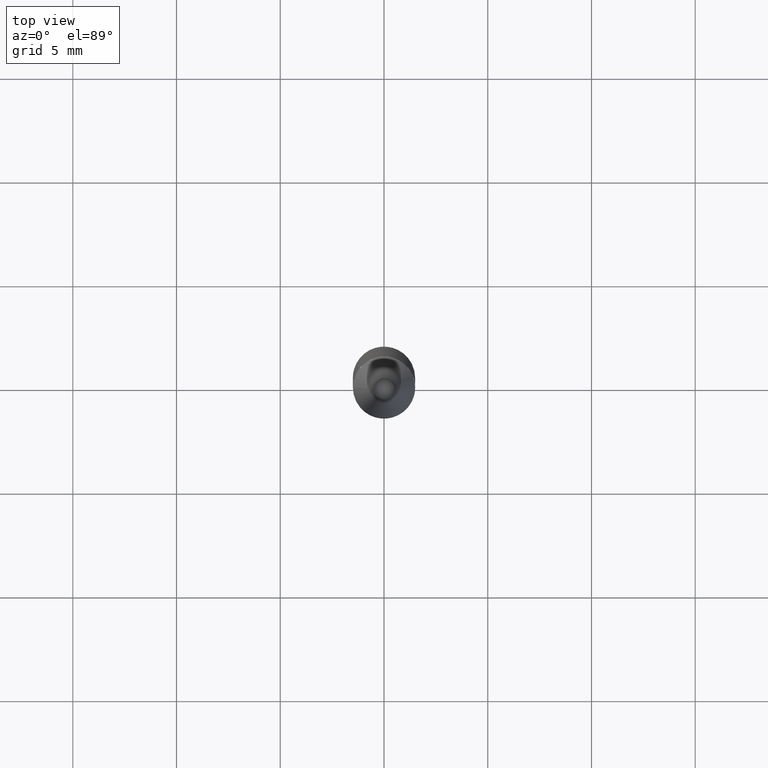
[diagram: clean part render]
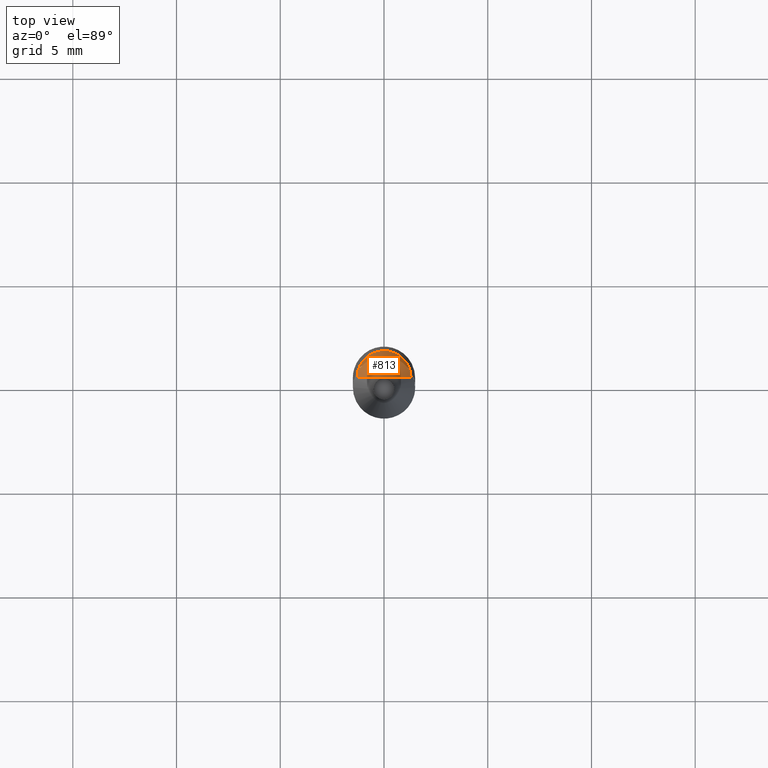
[diagram: same view with one face highlighted and labeled with its STEP entity id]
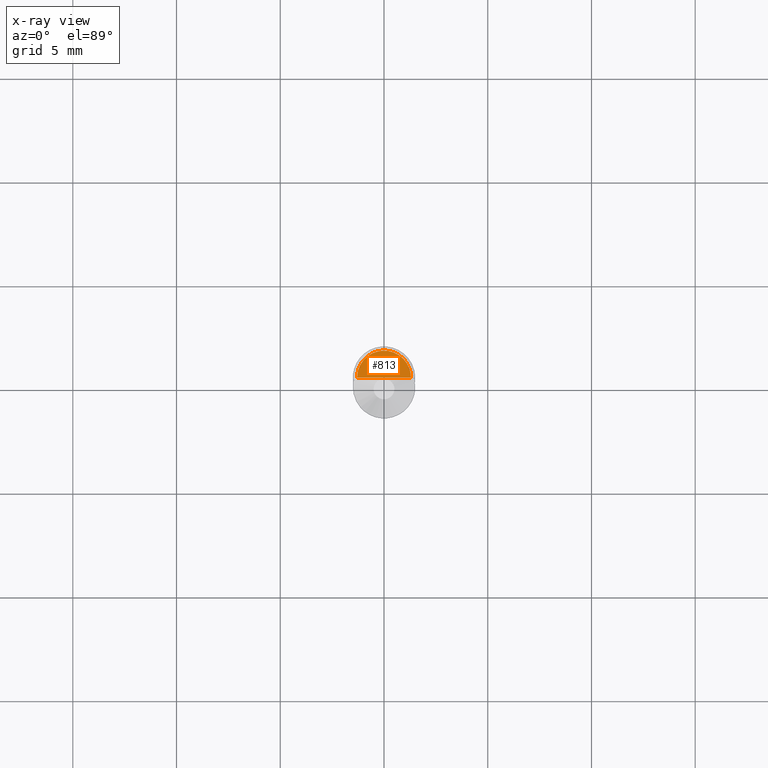
[diagram: x-ray of the same camera — body ghosted, the highlighted face saturated]
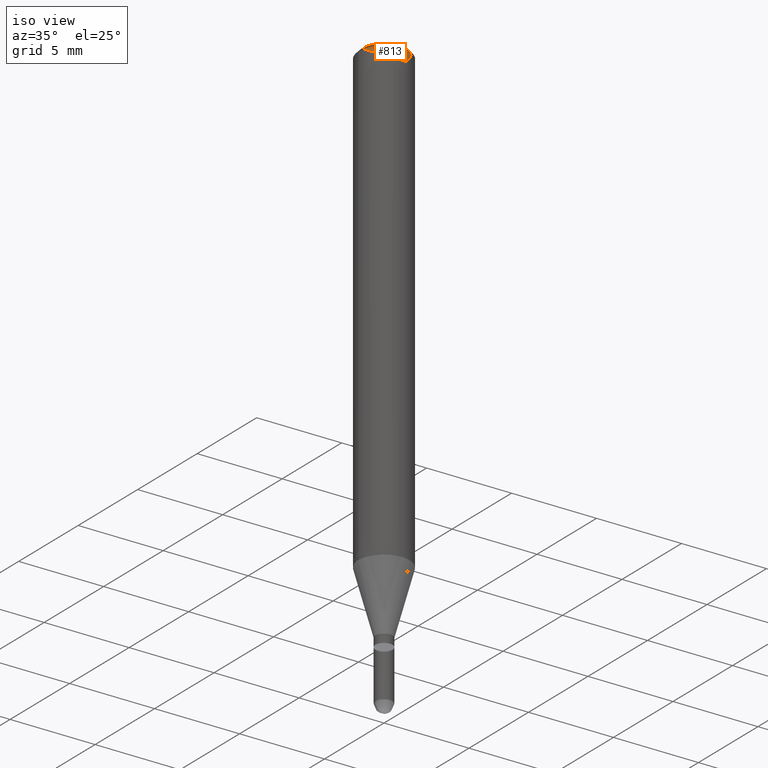
[diagram: same view with one face highlighted and labeled with its STEP entity id]
A machine part, top view. The second image highlights one B-rep face of the part: STEP entity #813.
The next image is the same camera in x-ray: the body ghosted, the highlighted face saturated — about 0% of this face is hidden behind the body in this view.
A second angle (iso view) of the same face is appended — the face is thin or edge-on in the first view.
In plain terms, the highlighted face is a freeform B-spline surface patch.
Its self-contained STEP definition (entity closure, byte-faithful):
#546=CARTESIAN_POINT('',(1.3,0.0,27.0));
#547=CARTESIAN_POINT('',(1.3,1.3,27.0));
#548=CARTESIAN_POINT('',(0.0,1.3,27.0));
#549=CARTESIAN_POINT('',(-1.3,1.3,27.0));
#550=CARTESIAN_POINT('',(-1.3,0.0,27.0));
#551=CARTESIAN_POINT('',(0.0,0.0,27.0));
#798=(
BOUNDED_SURFACE()
B_SPLINE_SURFACE(1,2,(
(#546,#547,#548,#549,#550),
(#551,#551,#551,#551,#551)
), .UNSPECIFIED.,.F.,.F.,.F.)
B_SPLINE_SURFACE_WITH_KNOTS((2,2),(3,2,3),(
0.0,1.0),(
0.0,0.5,1.0), .UNSPECIFIED.)
GEOMETRIC_REPRESENTATION_ITEM()
RATIONAL_B_SPLINE_SURFACE(((1.0,0.707106781187,1.0,0.707106781187,1.0),
(1.0,0.707106781187,1.0,0.707106781187,1.0)
))
REPRESENTATION_ITEM('')
SURFACE()
);
#799=(
BOUNDED_CURVE()
B_SPLINE_CURVE(2,(#550,#549,#548,#547,#546),.UNSPECIFIED.,.F.,.F.)
B_SPLINE_CURVE_WITH_KNOTS((3,2,3),
(0.0,0.5,1.0),.UNSPECIFIED.)
CURVE()
GEOMETRIC_REPRESENTATION_ITEM()
RATIONAL_B_SPLINE_CURVE((1.0,0.707106781187,1.0,0.707106781187,1.0))
REPRESENTATION_ITEM('')
);
#800=(
BOUNDED_CURVE()
B_SPLINE_CURVE(1,(#546,#551),.UNSPECIFIED.,.F.,.F.)
B_SPLINE_CURVE_WITH_KNOTS((2,2),
(0.0,1.0),.UNSPECIFIED.)
CURVE()
GEOMETRIC_REPRESENTATION_ITEM()
RATIONAL_B_SPLINE_CURVE((1.0,1.0))
REPRESENTATION_ITEM('')
);
#801=(
BOUNDED_CURVE()
B_SPLINE_CURVE(1,(#551,#550),.UNSPECIFIED.,.F.,.F.)
B_SPLINE_CURVE_WITH_KNOTS((2,2),
(0.0,1.0),.UNSPECIFIED.)
CURVE()
GEOMETRIC_REPRESENTATION_ITEM()
RATIONAL_B_SPLINE_CURVE((1.0,1.0))
REPRESENTATION_ITEM('')
);
#802=VERTEX_POINT('',#546);
#803=VERTEX_POINT('',#550);
#804=VERTEX_POINT('',#551);
#805=EDGE_CURVE('',#803,#802,#799,.T.);
#806=EDGE_CURVE('',#802,#804,#800,.T.);
#807=EDGE_CURVE('',#804,#803,#801,.T.);
#808=ORIENTED_EDGE('',*,*,#805,.T.);
#809=ORIENTED_EDGE('',*,*,#806,.T.);
#810=ORIENTED_EDGE('',*,*,#807,.T.);
#811=EDGE_LOOP('',(#808,#809,#810));
#812=FACE_OUTER_BOUND('',#811,.T.);
#813=ADVANCED_FACE('',(#812),#798,.T.);